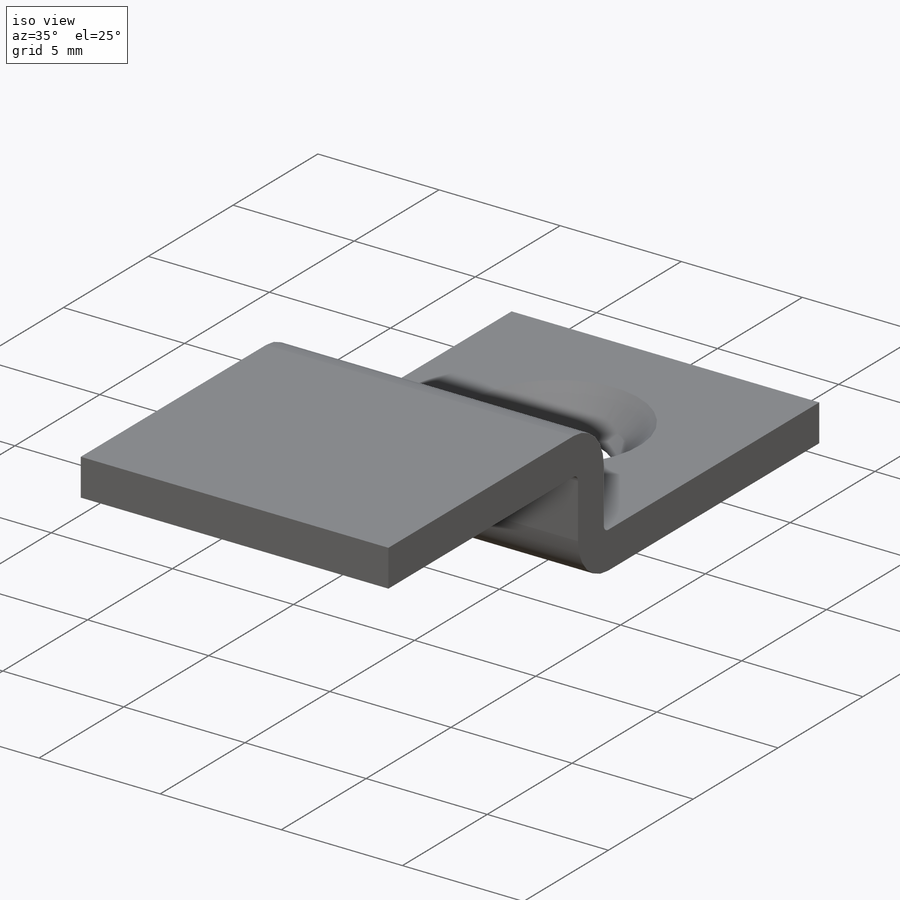
[diagram: iso view]
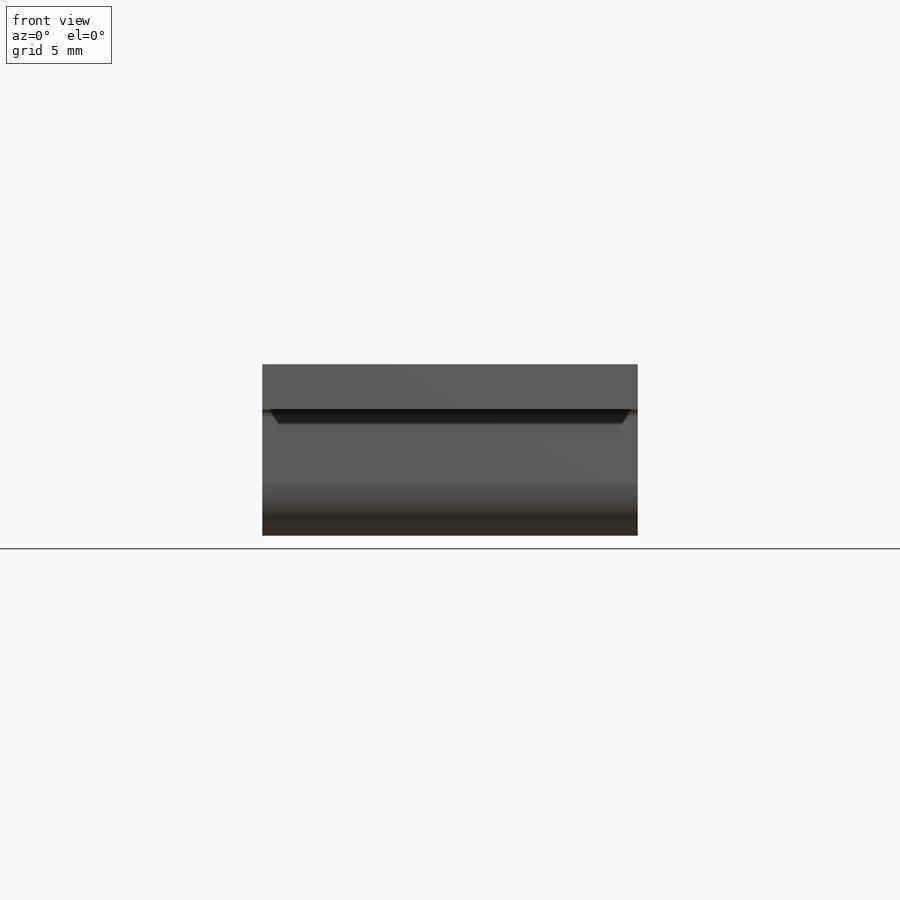
[diagram: front view]
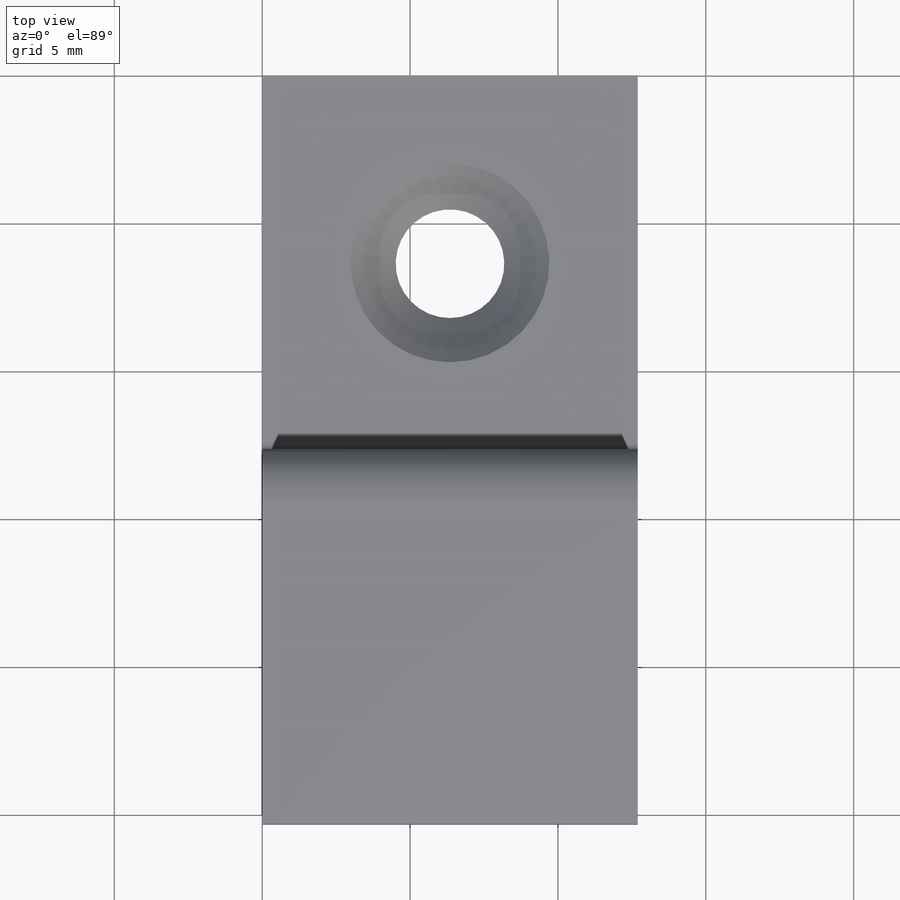
[diagram: top view]
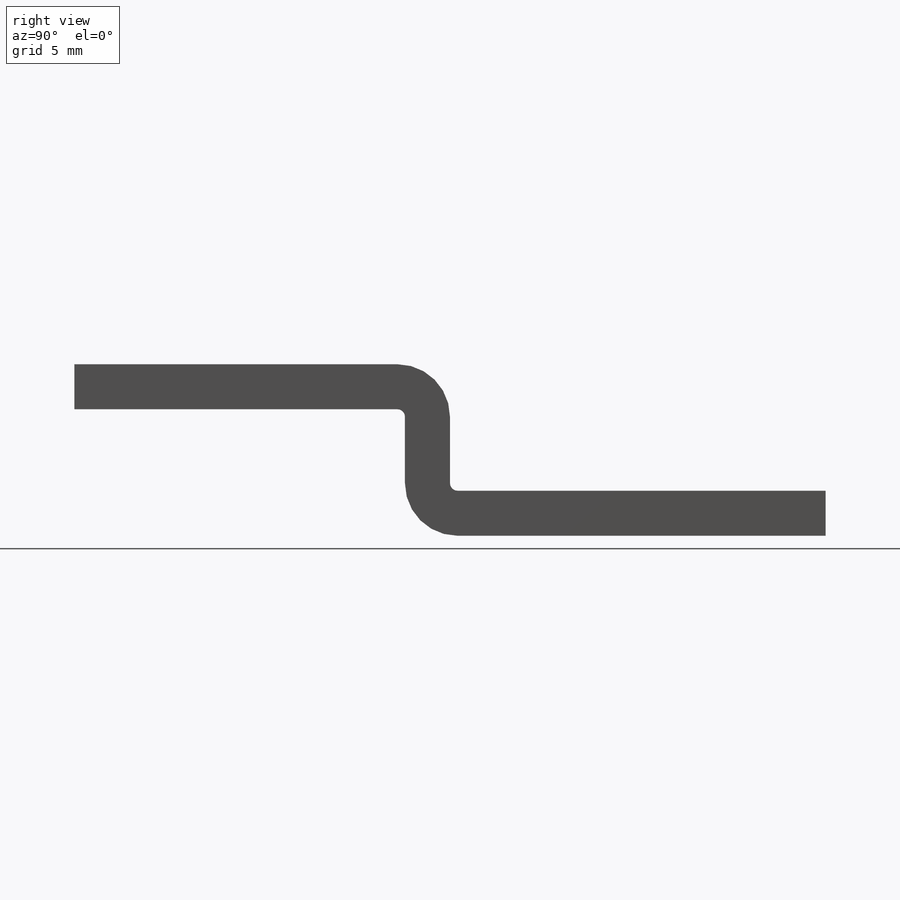
[diagram: right view]
SOLIDWORKS PART (.sldprt)
format: sldprt  version: not decoded by parser v0  size: 224,256 bytes
history: native  units: mm
features: sketch x7, sheet_metal_op x3, material x1, hole x1 + 2 further entries (+11 scaffold rows collapsed; 1 parser-record rows omitted)
feature tree (26):
  scaffold x11  (default folders/planes/origin — collapsed)
  material  "Copper"
  sketch  "Sketch1"  dims[D1=12.7mm]
  sheet_metal_op  "Sheet-Metal1"
  sheet_metal_op  "Base-Flange1"
  sketch  "Sketch9"  dims[c1.D1=5.8mm c2.D1=0.254mm c2.D4=90.0deg c2.D5=1.0 c2.D8=0.762mm c2.D9=0.762mm c3.D1=0.254mm c3.D2=500.0mm c3.D3=0.0mm c3.D6=10.0mm c3.D7=4.276mm]
  hole  "CSK for M3 SFHCS1"  Diameter=3.4mm Depth=1.524mm
  sketch  "Sketch11"  dims[D1=6.35mm]
  sketch  "Sketch10"  dims[hole-wizard template sketch: 55 standard entries collapsed; hole parameters kept: c17.Thru Hole Depth=1.524mm c17.Near C'Sink Dia.=6.72mm c17.D4=~3.666174mm c17.Near C'Sink Angle=90.0deg c17.Edge-Flange4=0.0]
  sketch  "Sketch15"  dims[D1=12.7mm]
  sheet_metal_op  "EdgeBend2"
  "Flat-Pattern1"
  sketch  "Bend-Lines1"
  sketch  "Bounding-Box1"
  parser-record x1  (decoder bookkeeping rows leaked as tree rows — omitted from the tree; the rows remain in map.json)
  "Flatten-<EdgeBend2>1"
decode coverage: 6 of 11 modeling features carry decoded parameters; 2 rows unclassified (native names shown)
note: ~ marks probable driven/reference dimensions
note: suppression state not decoded; provenance and decode notes live in map.json
